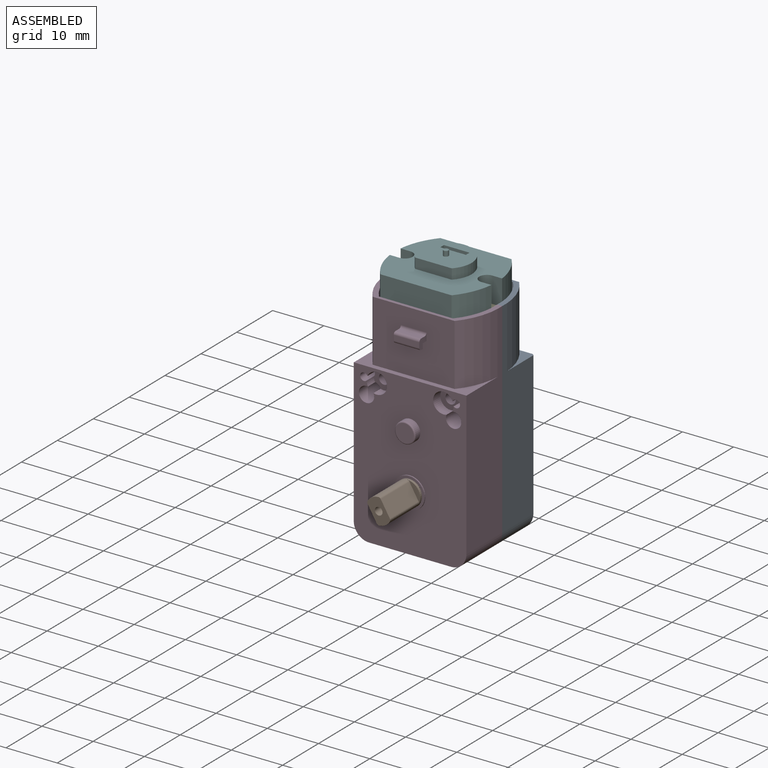
[diagram: assembled view]
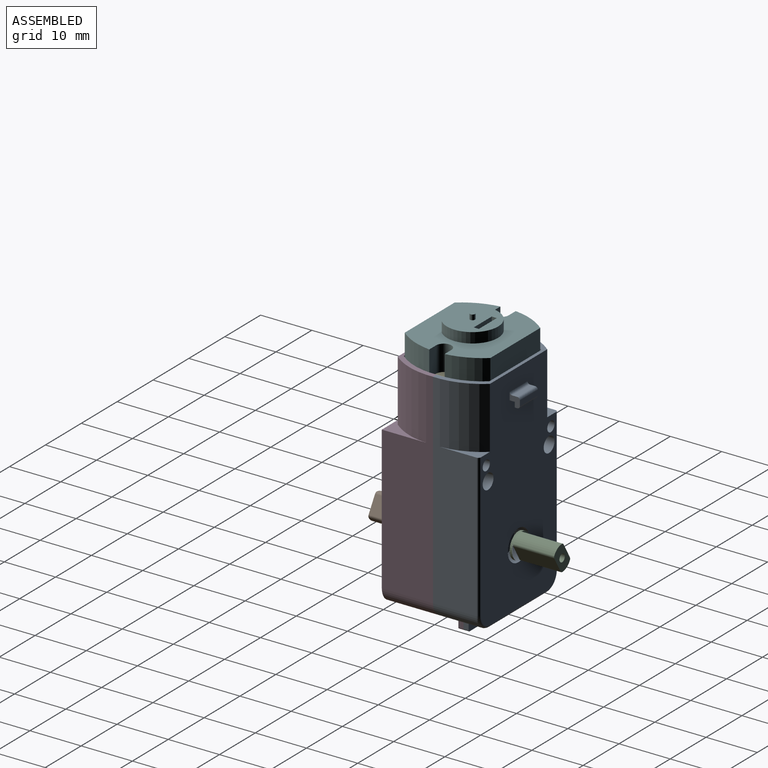
[diagram: assembled view, second angle]
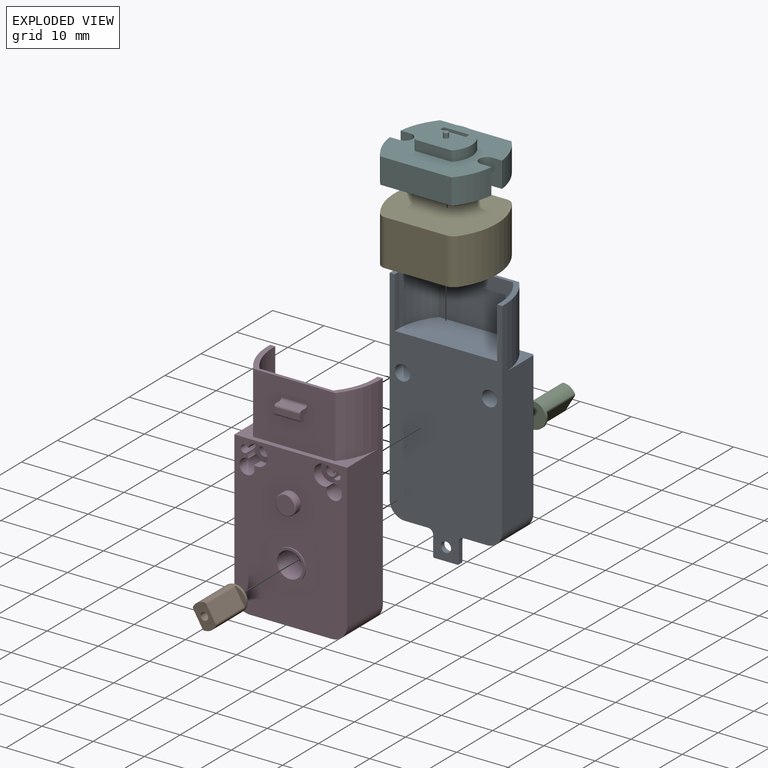
[diagram: exploded view]
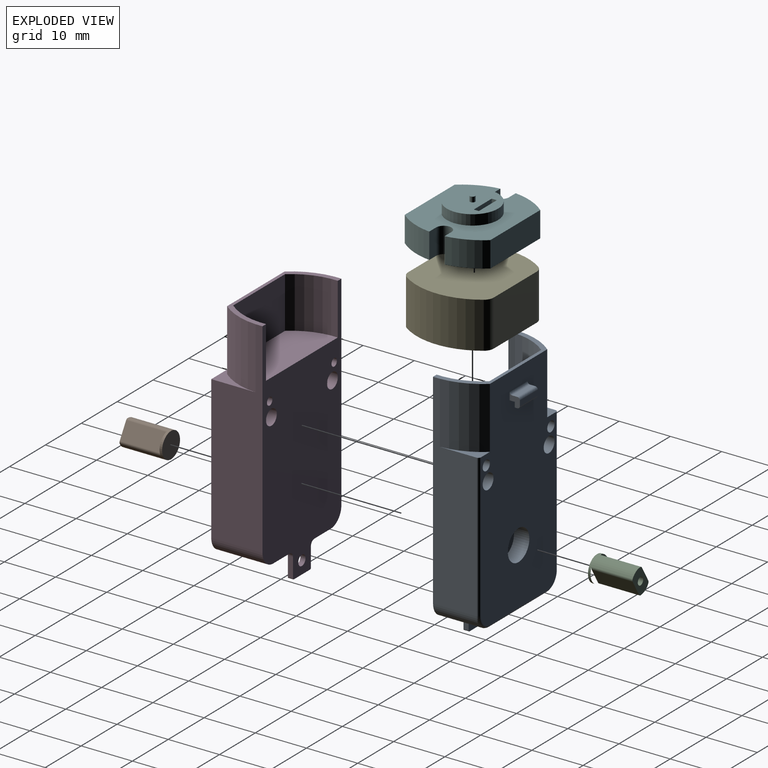
[diagram: exploded view, second angle]
ASSEMBLY  parts=6 mates=5
PART A: 52 faces, bbox 22.5x11x48 mm
  f0: plane 5x1mm, normal (0,0,-1), area 5mm2, adj f1,f38,f39,f41
  f1: plane 42.5x21mm, normal (0,1,0), area 773.6mm2, adj f0,f2,f4,f17,f18,f19,f20,f21
  f2: plane 7.66x3mm, normal (0,0,1), area 7.8mm2, adj f1,f6,f18,f24
  f3: plane 16x8.5mm, normal (0,0,-1), area 129mm2, adj f7,f10,f13,f14,f15,f16,f22
  f4: plane 7.66x3mm, normal (0,0,1), area 7.8mm2, adj f1,f5,f17,f20
  f5: plane 40x8.5mm, normal (1,0,0), area 254.1mm2, adj f4,f7,f15,f17,f19,f20
  f6: plane 40x8.5mm, normal (-1,0,0), area 254.1mm2, adj f2,f7,f16,f18,f19,f24
  f7: plane 48x22mm, normal (0,-1,0), area 750.2mm2, adj f3,f5,f6,f8,f9,f11,f12,f13
  f8: plane 3.75x1mm, normal (1,0,0), area 3.8mm2, adj f7,f10,f13,f26
  f9: plane 3.75x1mm, normal (-1,0,0), area 3.8mm2, adj f7,f10,f14,f25
  f10: plane 7x5mm, normal (0,1,0), area 22.3mm2, adj f3,f8,f9,f11,f12,f13,f14,f25
  f11: plane 4.5x1mm, normal (0,0,-1), area 4.5mm2, adj f7,f10,f25,f26
  f12: cylinder r=1mm len=2mm, axis (0,1,0), area 6.3mm2, adj f7,f10
  f13: cylinder r=1mm len=1mm, axis (0,1,0), area 1.6mm2, adj f3,f7,f8,f10
  f14: cylinder r=1mm len=1mm, axis (0,-1,0), area 1.6mm2, adj f3,f7,f9,f10
  f15: cylinder r=3mm len=8.5mm, axis (0,-1,0), area 40.1mm2, adj f3,f5,f7,f21
  f16: cylinder r=3mm len=8.5mm, axis (0,1,0), area 40.1mm2, adj f3,f6,f7,f23
  f17: cylinder r=13mm len=12mm, axis (0,0,-1), area 100.4mm2, adj f1,f4,f5,f19
  f18: cylinder r=13mm len=12mm, axis (0,0,-1), area 100.4mm2, adj f1,f2,f6,f19
  f19: plane 22x9mm, normal (0,0,1), area 28.5mm2, adj f1,f5,f6,f7,f17,f18,f46,f47
  f20: cylinder r=0.5mm len=28mm, axis (0,0,1), area 22mm2, adj f1,f4,f5,f21
  f21: torus R=2.5mm, axis (0,1,0), area 3.5mm2, adj f1,f15,f20,f22
  f22: cylinder r=0.5mm len=16mm, axis (1,0,0), area 12.6mm2, adj f1,f3,f21,f23
  f23: torus R=2.5mm, axis (0,1,0), area 3.5mm2, adj f1,f16,f22,f24
  f24: cylinder r=0.5mm len=28mm, axis (0,0,-1), area 22mm2, adj f1,f2,f6,f23
  f25: cylinder r=0.25mm len=1mm, axis (0,1,0), area 0.4mm2, adj f7,f9,f10,f11
  f26: cylinder r=0.25mm len=1mm, axis (0,-1,0), area 0.4mm2, adj f7,f8,f10,f11
  f27: cylinder r=3mm len=6mm, axis (0,1,0), area 56.5mm2, adj f1,f28
  f28: plane 6x6mm, normal (0,1,0), area 26.5mm2, adj f27,f29
  f29: cylinder r=0.75mm len=3mm, axis (0,1,0), area 14.1mm2, adj f28,f30
  f30: plane 1.5x1.5mm, normal (0,1,0), area 1.8mm2, adj f29
  f31: cylinder r=1.5mm len=9mm, axis (0,1,0), area 84.8mm2, adj f1,f7
  f32: cylinder r=1.5mm len=9mm, axis (0,1,0), area 84.8mm2, adj f1,f7
  f33: cylinder r=1mm len=5mm, axis (0,1,0), area 31.4mm2, adj f1,f34
  f34: plane 2x2mm, normal (0,1,0), area 3.1mm2, adj f33
  f35: cylinder r=1mm len=5mm, axis (0,1,0), area 31.4mm2, adj f1,f36
  f36: plane 2x2mm, normal (0,1,0), area 3.1mm2, adj f35
  f37: plane 5x1mm, normal (0,0,1), area 5mm2, adj f38,f39,f43,f44
  f38: plane 2.5x2mm, normal (1,0,0), area 2.9mm2, adj f0,f1,f37,f40,f41,f42,f43,f44
  f39: plane 2.5x2mm, normal (-1,0,0), area 2.9mm2, adj f0,f1,f37,f40,f41,f42,f43,f44
  f40: plane 5x1mm, normal (0,1,0), area 5mm2, adj f38,f39,f43,f45
  f41: plane 5x1mm, normal (0,-1,0), area 5mm2, adj f0,f38,f39,f42
  f42: plane 5x0.5mm, normal (0,0,-1), area 2.5mm2, adj f38,f39,f41,f45
  f43: cylinder r=0.5mm len=5mm, axis (-1,0,0), area 3.9mm2, adj f37,f38,f39,f40
  f44: cylinder r=0.5mm len=5mm, axis (1,0,0), area 3.9mm2, adj f1,f37,f38,f39
  f45: cylinder r=0.5mm len=5mm, axis (1,0,0), area 3.9mm2, adj f38,f39,f40,f42
  f46: plane 10x1.29mm, normal (1,0,0), area 12.9mm2, adj f7,f19,f47,f51
  f47: cylinder r=12mm len=10mm, axis (0,0,1), area 77.2mm2, adj f19,f46,f48,f51
  f48: plane 14.46x10mm, normal (0,-1,0), area 144.6mm2, adj f19,f47,f49,f51
  f49: cylinder r=12mm len=10mm, axis (0,0,1), area 77.2mm2, adj f19,f48,f50,f51
  f50: plane 10x1.29mm, normal (-1,0,0), area 12.9mm2, adj f7,f19,f49,f51
  f51: plane 20x8.36mm, normal (0,0,1), area 153.9mm2, adj f7,f46,f47,f48,f49,f50
PART B: 13 faces, bbox 5x8.5x5 mm
  f0: plane 3.72x2.53mm, normal (0,-1,0), area 2.8mm2, adj f1,f6,f9,f10
  f1: cylinder r=2.5mm len=8.5mm, axis (0,1,0), area 49.7mm2, adj f0,f2,f3,f7,f9,f10,f11,f12
  f2: plane 3.72x2.53mm, normal (0,-1,0), area 2.8mm2, adj f1,f4,f11,f12
  f3: plane 5x5mm, normal (0,1,0), area 19.6mm2, adj f1
  f4: plane 8x2.98mm, normal (0.86,0,0.51), area 27.7mm2, adj f2,f7,f11,f12
  f5: cylinder r=0.75mm len=8mm, axis (0,1,0), area 37.7mm2, adj f7,f8
  f6: plane 8x2.98mm, normal (-0.86,0,-0.51), area 27.7mm2, adj f0,f7,f9,f10
  f7: plane 5x4.49mm, normal (0,-1,0), area 12.2mm2, adj f1,f4,f5,f6,f9,f10,f11,f12
  f8: plane 1.5x1.5mm, normal (0,-1,0), area 1.8mm2, adj f5
  f9: cylinder r=0.5mm len=8mm, axis (0,1,0), area 4.2mm2, adj f0,f1,f6,f7
  f10: cylinder r=0.5mm len=8mm, axis (0,1,0), area 4.2mm2, adj f0,f1,f6,f7
  f11: cylinder r=0.5mm len=8mm, axis (0,1,0), area 4.2mm2, adj f1,f2,f4,f7
  f12: cylinder r=0.5mm len=8mm, axis (0,1,0), area 4.2mm2, adj f1,f2,f4,f7
PART C: same geometry as B
PART D: 58 faces, bbox 22x11.5x48 mm
  f0: plane 31x22mm, normal (0,-1,0), area 595.3mm2, adj f3,f4,f5,f6,f15,f16,f22,f23
  f1: plane 16x12mm, normal (0,-1,0), area 184.5mm2, adj f2,f4,f17,f18,f19,f25,f26,f31
  f2: plane 5x1mm, normal (0,0,-1), area 5mm2, adj f1,f25,f26,f28
  f3: plane 16x10mm, normal (0,0,-1), area 153mm2, adj f0,f7,f10,f13,f14,f15,f16
  f4: plane 22x8.66mm, normal (0,0,1), area 37.6mm2, adj f0,f1,f5,f6,f17,f18
  f5: plane 40x10mm, normal (-1,0,0), area 296.1mm2, adj f0,f4,f7,f15,f17,f19
  f6: plane 40x10mm, normal (1,0,0), area 296.1mm2, adj f0,f4,f7,f16,f18,f19
  f7: plane 48x22mm, normal (0,1,0), area 746.7mm2, adj f3,f5,f6,f8,f9,f11,f12,f13
  f8: plane 3.75x1mm, normal (-1,0,0), area 3.7mm2, adj f7,f10,f13,f21
  f9: plane 3.75x1mm, normal (1,0,0), area 3.7mm2, adj f7,f10,f14,f20
  f10: plane 7x5mm, normal (0,-1,0), area 22.3mm2, adj f3,f8,f9,f11,f12,f13,f14,f20
  f11: plane 4.5x1mm, normal (0,0,-1), area 4.5mm2, adj f7,f10,f20,f21
  f12: cylinder r=1mm len=2mm, axis (0,-1,0), area 6.3mm2, adj f7,f10
  f13: cylinder r=1mm len=1mm, axis (0,-1,0), area 1.6mm2, adj f3,f7,f8,f10
  f14: cylinder r=1mm len=1mm, axis (0,1,0), area 1.6mm2, adj f3,f7,f9,f10
  f15: cylinder r=3mm len=10mm, axis (0,1,0), area 47.1mm2, adj f0,f3,f5,f7
  f16: cylinder r=3mm len=10mm, axis (0,-1,0), area 47.1mm2, adj f0,f3,f6,f7
  f17: cylinder r=13mm len=12mm, axis (0,0,-1), area 100.4mm2, adj f1,f4,f5,f19
  f18: cylinder r=13mm len=12mm, axis (0,0,-1), area 100.4mm2, adj f1,f4,f6,f19
  f19: plane 22x9mm, normal (0,0,1), area 28.5mm2, adj f1,f5,f6,f7,f17,f18,f33,f34
  f20: cylinder r=0.25mm len=1mm, axis (0,-1,0), area 0.4mm2, adj f7,f9,f10,f11
  f21: cylinder r=0.25mm len=1mm, axis (0,1,0), area 0.4mm2, adj f7,f8,f10,f11
  f22: cylinder r=1.5mm len=10mm, axis (0,-1,0), area 91.3mm2, adj f0,f7,f48,f49,f50
  f23: cylinder r=1.5mm len=10mm, axis (0,-1,0), area 91.3mm2, adj f0,f7,f51,f52,f53
  f24: plane 5x1mm, normal (0,0,1), area 5mm2, adj f25,f26,f30,f31
  f25: plane 2.5x2mm, normal (-1,0,0), area 2.9mm2, adj f1,f2,f24,f27,f28,f29,f30,f31
  f26: plane 2.5x2mm, normal (1,0,0), area 2.9mm2, adj f1,f2,f24,f27,f28,f29,f30,f31
  f27: plane 5x1mm, normal (0,-1,0), area 5mm2, adj f25,f26,f30,f32
  f28: plane 5x1mm, normal (0,1,0), area 5mm2, adj f2,f25,f26,f29
  f29: plane 5x0.5mm, normal (0,0,-1), area 2.5mm2, adj f25,f26,f28,f32
  f30: cylinder r=0.5mm len=5mm, axis (1,0,0), area 3.9mm2, adj f24,f25,f26,f27
  f31: cylinder r=0.5mm len=5mm, axis (-1,0,0), area 3.9mm2, adj f1,f24,f25,f26
  f32: cylinder r=0.5mm len=5mm, axis (-1,0,0), area 3.9mm2, adj f25,f26,f27,f29
  f33: plane 10x1.29mm, normal (-1,0,0), area 12.9mm2, adj f7,f19,f34,f38
  f34: cylinder r=12mm len=10mm, axis (0,0,1), area 77.2mm2, adj f19,f33,f35,f38
  f35: plane 14.46x10mm, normal (0,1,0), area 144.6mm2, adj f19,f34,f36,f38
  f36: cylinder r=12mm len=10mm, axis (0,0,1), area 77.2mm2, adj f19,f35,f37,f38
  f37: plane 10x1.29mm, normal (1,0,0), area 12.9mm2, adj f7,f19,f36,f38
  f38: plane 20x8.36mm, normal (0,0,1), area 153.9mm2, adj f7,f33,f34,f35,f36,f37
  f39: cylinder r=0.75mm len=10mm, axis (0,-1,0), area 45.2mm2, adj f0,f7,f48,f49,f50
  f40: cylinder r=0.75mm len=10mm, axis (0,-1,0), area 45.2mm2, adj f0,f7,f51,f52,f53
  f41: cylinder r=2mm len=4mm, axis (0,1,0), area 15.7mm2, adj f0,f43
  f42: plane 3.5x3.5mm, normal (0,-1,0), area 9.6mm2, adj f43
  f43: torus R=1.75mm, axis (0,-1,0), area 4.7mm2, adj f41,f42
  f44: plane 6x6mm, normal (0,-1,0), area 8.6mm2, adj f45,f47
  f45: cylinder r=3mm len=6mm, axis (0,1,0), area 4.7mm2, adj f0,f44
  f46: plane 5x5mm, normal (0,-1,0), area 19.6mm2, adj f47
  f47: cylinder r=2.5mm len=5.25mm, axis (0,-1,0), area 82.5mm2, adj f44,f46
  f48: cylinder r=2mm len=4mm, axis (0,-1,0), area 18.4mm2, adj f0,f22,f39,f50
  f49: cylinder r=2mm len=2mm, axis (0,-1,0), area 2mm2, adj f0,f22,f39,f50
  f50: plane 4x4mm, normal (0,-1,0), area 9mm2, adj f22,f39,f48,f49,f54
  f51: cylinder r=2mm len=2mm, axis (0,-1,0), area 2mm2, adj f0,f23,f40,f53
  f52: cylinder r=2mm len=4mm, axis (0,-1,0), area 18.4mm2, adj f0,f23,f40,f53
  f53: plane 4x4mm, normal (0,-1,0), area 9mm2, adj f23,f40,f51,f52,f56
  f54: cylinder r=1mm len=3mm, axis (0,-1,0), area 18.8mm2, adj f50,f55
  f55: plane 2x2mm, normal (0,-1,0), area 3.1mm2, adj f54
  f56: cylinder r=1mm len=3mm, axis (0,-1,0), area 18.8mm2, adj f53,f57
  f57: plane 2x2mm, normal (0,-1,0), area 3.1mm2, adj f56
PART E: 10 faces, bbox 20x16.7x9 mm
  f0: cylinder r=13mm len=15.03mm, axis (0,0,-1), area 144.3mm2, adj f4,f5,f7,f8
  f1: plane 11.95x9mm, normal (0,-1,0), area 107.5mm2, adj f4,f5,f8,f9
  f2: cylinder r=13mm len=15.03mm, axis (0,0,-1), area 144.3mm2, adj f4,f5,f6,f9
  f3: plane 11.95x9mm, normal (0,1,0), area 107.5mm2, adj f4,f5,f6,f7
  f4: plane 20x16.72mm, normal (0,0,1), area 301.7mm2, adj f0,f1,f2,f3,f6,f7,f8,f9
  f5: plane 20x16.72mm, normal (0,0,-1), area 301.7mm2, adj f0,f1,f2,f3,f6,f7,f8,f9
  f6: cylinder r=2mm len=9mm, axis (0,0,-1), area 17.2mm2, adj f2,f3,f4,f5
  f7: cylinder r=2mm len=9mm, axis (0,0,-1), area 17.2mm2, adj f0,f3,f4,f5
  f8: cylinder r=2mm len=9mm, axis (0,0,-1), area 17.2mm2, adj f0,f1,f4,f5
  f9: cylinder r=2mm len=9mm, axis (0,0,-1), area 17.2mm2, adj f1,f2,f4,f5
PART F: 24 faces, bbox 19.8x16.7x8 mm
  f0: plane 19.83x16.72mm, normal (0,0,1), area 212.2mm2, adj f1,f2,f3,f4,f5,f6,f8,f9
  f1: cylinder r=13mm len=6.86mm, axis (0,0,-1), area 37.9mm2, adj f0,f4,f7,f12
  f2: cylinder r=13mm len=6.86mm, axis (0,0,-1), area 37.9mm2, adj f0,f6,f7,f8
  f3: cylinder r=13mm len=6.86mm, axis (0,0,-1), area 37.9mm2, adj f0,f6,f7,f13
  f4: plane 13.91x5mm, normal (0,1,0), area 69.6mm2, adj f0,f1,f5,f7
  f5: cylinder r=13mm len=6.86mm, axis (0,0,-1), area 37.9mm2, adj f0,f4,f7,f9
  f6: plane 13.91x5mm, normal (0,-1,0), area 69.6mm2, adj f0,f2,f3,f7
  f7: plane 19.83x16.72mm, normal (0,0,-1), area 283.3mm2, adj f1,f2,f3,f4,f5,f6,f8,f9
  f8: plane 5x1.91mm, normal (0,1,0), area 9.6mm2, adj f0,f2,f7,f10
  f9: plane 5x1.91mm, normal (0,-1,0), area 9.6mm2, adj f0,f5,f7,f10
  f10: cylinder r=1.5mm len=5mm, axis (0,0,1), area 23.6mm2, adj f0,f7,f8,f9
  f11: cylinder r=1.5mm len=5mm, axis (0,0,1), area 23.6mm2, adj f0,f7,f12,f13
  f12: plane 5x1.91mm, normal (0,-1,0), area 9.6mm2, adj f0,f1,f7,f11
  f13: plane 5x1.91mm, normal (0,1,0), area 9.6mm2, adj f0,f3,f7,f11
  f14: plane 10x8.5mm, normal (0,0,1), area 65.4mm2, adj f15,f16,f18,f19,f20,f21,f22
  f15: cylinder r=5mm len=10mm, axis (0,0,-1), area 46.9mm2, adj f0,f14,f16
  f16: plane 7.14x2mm, normal (0,-1,0), area 14.3mm2, adj f0,f14,f15
  f17: plane 1x1mm, normal (0,0,1), area 0.8mm2, adj f18
  f18: cylinder r=0.5mm len=1mm, axis (0,0,-1), area 3.1mm2, adj f14,f17
  f19: plane 2x1mm, normal (-1,0,0), area 2mm2, adj f14,f20,f22,f23
  f20: plane 5x2mm, normal (0,1,0), area 10mm2, adj f14,f19,f21,f23
  f21: plane 2x1mm, normal (1,0,0), area 2mm2, adj f14,f20,f22,f23
  f22: plane 5x2mm, normal (0,-1,0), area 10mm2, adj f14,f19,f21,f23
  f23: plane 5x1mm, normal (0,0,1), area 5mm2, adj f19,f20,f21,f22
PLACE A t=(-55.45,-79.05,12.21)mm
PLACE B t=(-55.45,-79.55,12.21)mm
PLACE C rot(axis=(0,0,-1),180deg) t=(-147.65,50.93,12.71)mm
PLACE D t=(-55.45,-79.05,12.21)mm
PLACE E t=(-55.45,-79.05,2.21)mm
PLACE F t=(-55.45,-79.05,2.21)mm
MATE fastened B.f1 <-> D.f47  axis (0,1,0) through (-101.55,-23.94,35.94)mm
MATE fastened F.f15 <-> E.f4  axis (0,0,-1) through (-101.55,-13.69,66.94)mm
MATE fastened C.f1 <-> A.f27  axis (0,-1,0) through (-101.55,-4.69,36.44)mm
MATE fastened A.f12 <-> D.f12  axis (0,-1,0) through (-101.55,-13.69,22.44)mm
MATE fastened E.f5 <-> A.f51  axis (0,0,-1) through (-101.55,-13.69,57.94)mm
